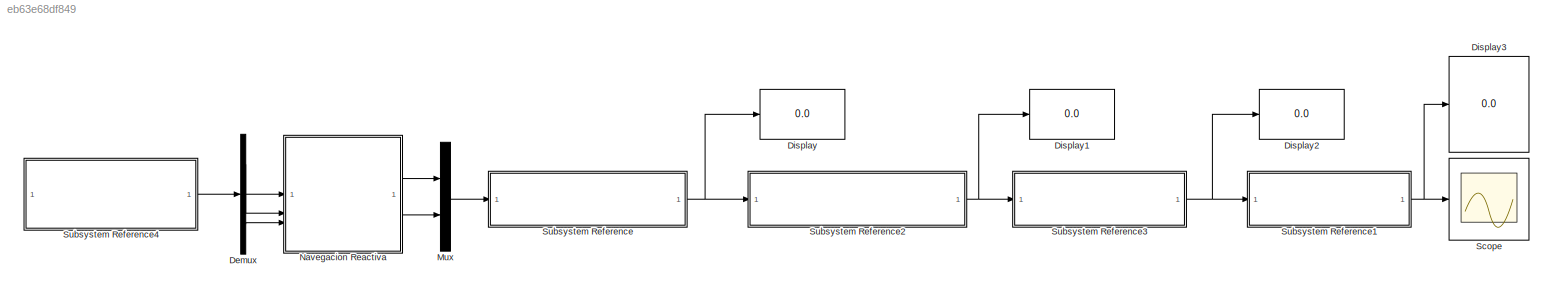
MODEL slx_eb63e68df849
KIND model
CONFIG AbsTol = auto
CONFIG EnableMultiTasking = on
CONFIG FixedStep = auto
CONFIG MaxStep = auto
CONFIG MinStep = auto
CONFIG RelTol = 1e-3
CONFIG SampleTimeConstraint = Unconstrained
CONFIG SolverName = FixedStepDiscrete
CONFIG StartTime = 0.0
CONFIG StopTime = 10.0
WORKSPACE source: mxarray member
WORKSPACE d = 0.18
BLOCK [Demux] Demux
  Outputs = 3
BLOCK [Display] Display
  Decimation = 1
BLOCK [Display] Display1
  Decimation = 1
BLOCK [Display] Display2
  Decimation = 1
BLOCK [Display] Display3
  Decimation = 1
BLOCK [Mux] Mux
  DisplayOption = bar
  Inputs = 2
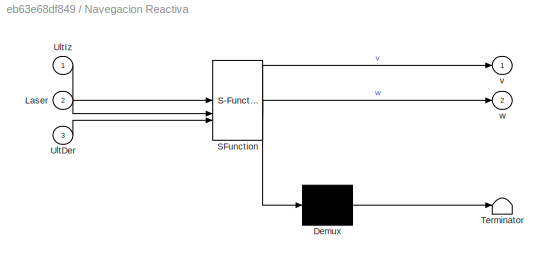
BLOCK [SubSystem] Navegacion Reactiva
  ErrorFcn = Stateflow.Translate.translate
  PermitHierarchicalResolution = ExplicitOnly
  SFBlockType = Chart
  TreatAsAtomicUnit = on
BLOCK [Demux] Navegacion Reactiva/ Demux 
  Outputs = 1
BLOCK [S-Function] Navegacion Reactiva/ SFunction 
  EnableBusSupport = on
  FunctionName = sf_sfun
  PortCounts = [3 3]
  SFcnIsStateOwnerBlock = off
  SFunctionDeploymentMode = off
  Tag = Stateflow S-Function 4
BLOCK [Terminator] Navegacion Reactiva/ Terminator 
BLOCK [Inport] Navegacion Reactiva/Laser
  Port = 2
BLOCK [Inport] Navegacion Reactiva/UltDer
  Port = 3
BLOCK [Inport] Navegacion Reactiva/UltIz
BLOCK [Outport] Navegacion Reactiva/v
BLOCK [Outport] Navegacion Reactiva/w
  Port = 2
BLOCK [Scope] Scope
  Floating = off
  NumInputPorts = 1
  ScopeSpecificationString = Simulink.scopes.TimeScopeBlockCfg('CurrentConfiguration', extmgr.ConfigurationSet(extmgr.Configuration('Core','General UI',true),extmgr.Configuration('Core','Source UI',true),extmgr.Configuration('Sources','WiredSimulink',true),extmgr.Configuration('Visuals','Time Domain',true,'SerializedDisplays',{struct('MinYLimReal','-0.48971','MaxYLimReal','1.9937','YLabelReal','','MinYLimMag','0.00000','MaxYL...<+1477ch>
BLOCK [SubSystem] Subsystem Reference
  ReferencedSubsystem = MyPieroMCI
BLOCK [SubSystem] Subsystem Reference1
  ReferencedSubsystem = Odometria
BLOCK [SubSystem] Subsystem Reference2
  ReferencedSubsystem = MyPieroControlVel
BLOCK [SubSystem] Subsystem Reference3
  ReferencedSubsystem = MyPieroMCD
BLOCK [SubSystem] Subsystem Reference4
  ReferencedSubsystem = MyPieroSensoresDistancia
LINE Demux:1 -> Navegacion Reactiva:1
LINE Demux:2 -> Navegacion Reactiva:2
LINE Demux:3 -> Navegacion Reactiva:3
LINE Mux:1 -> Subsystem Reference:1
LINE Navegacion Reactiva:1 -> Mux:1
LINE Navegacion Reactiva:2 -> Mux:2
NET Subsystem Reference1:1 -> Display3:1, Scope:1
NET Subsystem Reference2:1 -> Display1:1, Subsystem Reference3:1
NET Subsystem Reference3:1 -> Display2:1, Subsystem Reference1:1
LINE Subsystem Reference4:1 -> Demux:1
NET Subsystem Reference:1 -> Display:1, Subsystem Reference2:1
note: NET lines group one-source signal fan-out (src -> all destinations, sorted); 1:1 wires keep LINE
CHART Navegacion Reactiva states=9 transitions=25
  STATE_LABEL 'TightWay\n% Con esto intentare que\n% pase por un camino\n% estrecho hasta donde\n% pueda\nentry:\nv = 0.5;\nw = 0;\n'
  STATE_LABEL 'FullRotation\n% Si detecta algo\n% en todos los sentidos\nentry:\nv = 0;\nw = -pi + 0.1;'
  STATE_LABEL 'Default\nentry:\nv = 0.3;\nw = 0;'
  STATE_LABEL 'LeftSonar_Far\n% Si solo detecta el\n% Obstaculo con el\n% ultrasonidos izquierdo\n% lejos\nentry:\nv = 0.2;\nw = -pi/8;\n'
  STATE_LABEL 'LeftSonar_Close\n% Si solo detecta el\n% Obstaculo con el\n% ultrasonidos izquierdo\n% cerca\nentry:\nv = 0;\nw = -pi/4;\n'
  STATE_LABEL 'MidLaser\nentry:\nv = 0;\nw = 0;\n% Calculo el signo para\n% la rotacion aleatoria\nif round(rand) == 0\n    sign = -1;\nelse\n    sign = 1;\nend\n'
  STATE_LABEL 'RightSonar_Close\n% Si solo detecta el\n% Obstaculo con el\n% ultrasonidos derecho\n% cerca\nentry:\nv = 0;\nw = pi/4;'
  STATE_LABEL 'RightSonar_Far\n% Si solo detecta el\n% Obstaculo con el\n% ultrasonidos izquierdo\n% lejos\nentry:\nv = 0.2;\nw = pi/8;\n'
  STATE_LABEL 'RandomRotation\n% Si solo detecta el\n% Obstaculo con el\n% Laser\nentry:\nv =  0;\nw = sign*pi/4;'
CHART  states=0 transitions=0
